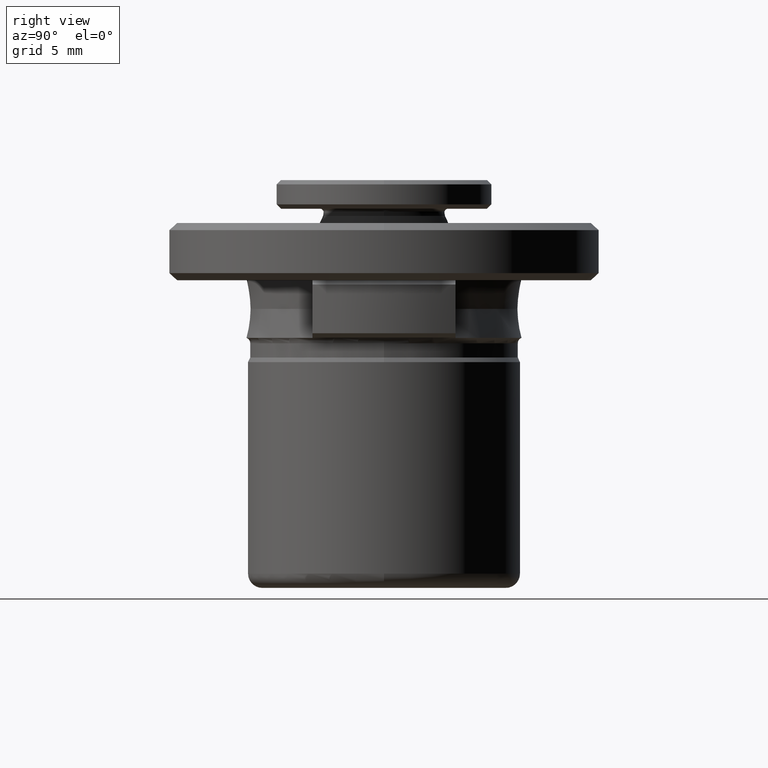
[diagram: clean part render]
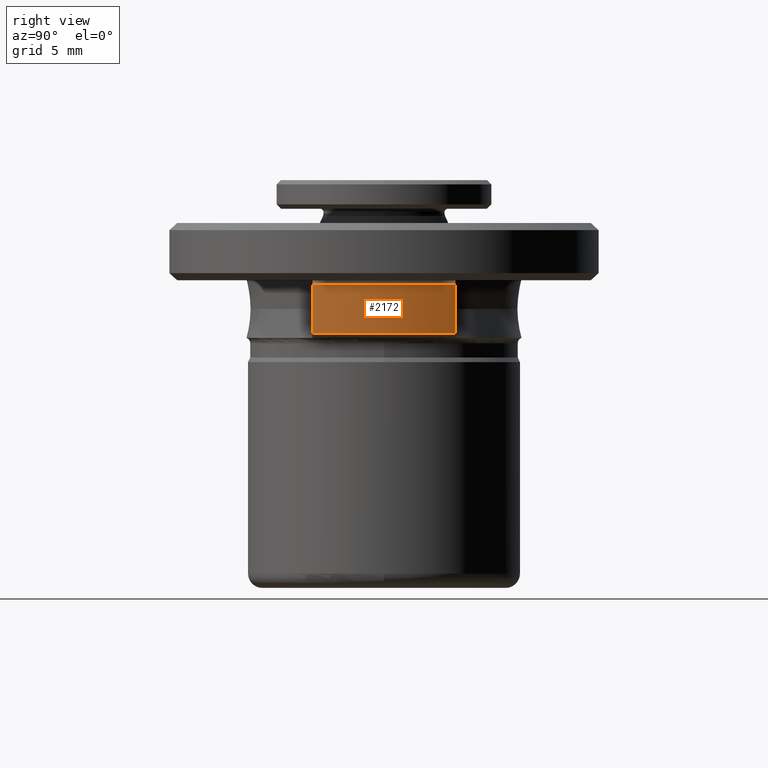
[diagram: same view with one face highlighted and labeled with its STEP entity id]
A machine part, right view. The second image highlights one B-rep face of the part: STEP entity #2172.
In plain terms, the highlighted cylindrical surface (partial cylindrical patch) has radius 12.4 mm, axis along (0, 0, 1).
Its self-contained STEP definition (entity closure, byte-faithful):
#26 = ORIENTED_EDGE ( 'NONE', *, *, #362, .F. ) ;
#104 = VERTEX_POINT ( 'NONE', #235 ) ;
#140 = AXIS2_PLACEMENT_3D ( 'NONE', #691, #2076, #1044 ) ;
#143 = EDGE_CURVE ( 'NONE', #1993, #647, #743, .T. ) ;
#166 = ORIENTED_EDGE ( 'NONE', *, *, #143, .T. ) ;
#201 = ORIENTED_EDGE ( 'NONE', *, *, #608, .F. ) ;
#218 = CARTESIAN_POINT ( 'NONE',  ( 11.34724636200171400, 5.000000000000000000, 5.049999999998430400 ) ) ;
#235 = CARTESIAN_POINT ( 'NONE',  ( 11.34724636202748200, -5.000000000000000000, 8.449999999976419900 ) ) ;
#316 = DIRECTION ( 'NONE',  ( 1.000000000000000000, 0.0000000000000000000, 1.398970545142586000E-016 ) ) ;
#362 = EDGE_CURVE ( 'NONE', #1893, #975, #920, .T. ) ;
#365 = DIRECTION ( 'NONE',  ( -0.0000000000000000000, -0.0000000000000000000, 1.000000000000000000 ) ) ;
#395 = DIRECTION ( 'NONE',  ( -0.0000000000000000000, -0.0000000000000000000, -1.000000000000000000 ) ) ;
#477 = CARTESIAN_POINT ( 'NONE',  ( 11.34724636200171400, 5.000000000000000000, 8.450000000001548300 ) ) ;
#504 = DIRECTION ( 'NONE',  ( 0.0000000000000000000, 0.0000000000000000000, -1.000000000000000000 ) ) ;
#533 = AXIS2_PLACEMENT_3D ( 'NONE', #1155, #2193, #837 ) ;
#571 = EDGE_CURVE ( 'NONE', #104, #975, #1971, .T. ) ;
#575 = CARTESIAN_POINT ( 'NONE',  ( 0.0000000000000000000, 0.0000000000000000000, 5.049999999999998900 ) ) ;
#598 = AXIS2_PLACEMENT_3D ( 'NONE', #575, #395, #1436 ) ;
#608 = EDGE_CURVE ( 'NONE', #104, #647, #645, .T. ) ;
#645 = CIRCLE ( 'NONE', #1688, 12.40000000000000200 ) ;
#647 = VERTEX_POINT ( 'NONE', #477 ) ;
#691 = CARTESIAN_POINT ( 'NONE',  ( 0.0000000000000000000, 0.0000000000000000000, 5.049999999999999800 ) ) ;
#726 = ORIENTED_EDGE ( 'NONE', *, *, #768, .F. ) ;
#743 = LINE ( 'NONE', #1928, #1154 ) ;
#768 = EDGE_CURVE ( 'NONE', #1993, #1893, #2161, .T. ) ;
#806 = EDGE_LOOP ( 'NONE', ( #726, #166, #201, #1057, #26 ) ) ;
#837 = DIRECTION ( 'NONE',  ( 1.000000000000000000, 0.0000000000000000000, 6.994852725712930200E-017 ) ) ;
#917 = CARTESIAN_POINT ( 'NONE',  ( 11.34724636193648300, -5.000000000000000000, 5.049999999940308000 ) ) ;
#920 = CIRCLE ( 'NONE', #533, 12.40000000000000200 ) ;
#975 = VERTEX_POINT ( 'NONE', #917 ) ;
#1044 = DIRECTION ( 'NONE',  ( 0.0000000000000000000, -1.000000000000000000, 0.0000000000000000000 ) ) ;
#1057 = ORIENTED_EDGE ( 'NONE', *, *, #571, .T. ) ;
#1129 = DIRECTION ( 'NONE',  ( 0.0000000000000000000, 0.0000000000000000000, 1.000000000000000000 ) ) ;
#1154 = VECTOR ( 'NONE', #365, 1000.000000000000000 ) ;
#1155 = CARTESIAN_POINT ( 'NONE',  ( 0.0000000000000000000, 0.0000000000000000000, 5.049999999999998900 ) ) ;
#1179 = CARTESIAN_POINT ( 'NONE',  ( 11.34724636200000000, -5.000000000000000000, 6.725040224999999900 ) ) ;
#1248 = CYLINDRICAL_SURFACE ( 'NONE', #140, 12.40000000000000200 ) ;
#1290 = CARTESIAN_POINT ( 'NONE',  ( 12.40000000000000200, 0.0000000000000000000, 5.049999999999998900 ) ) ;
#1436 = DIRECTION ( 'NONE',  ( 1.000000000000000000, 0.0000000000000000000, 6.994852725712930200E-017 ) ) ;
#1512 = VECTOR ( 'NONE', #504, 1000.000000000000000 ) ;
#1521 = CARTESIAN_POINT ( 'NONE',  ( 0.0000000000000000000, 0.0000000000000000000, 8.449999999999999300 ) ) ;
#1688 = AXIS2_PLACEMENT_3D ( 'NONE', #1521, #1129, #316 ) ;
#1710 = FACE_OUTER_BOUND ( 'NONE', #806, .T. ) ;
#1893 = VERTEX_POINT ( 'NONE', #1290 ) ;
#1928 = CARTESIAN_POINT ( 'NONE',  ( 11.34724636200000000, 5.000000000000000000, 6.725040224999999900 ) ) ;
#1971 = LINE ( 'NONE', #1179, #1512 ) ;
#1993 = VERTEX_POINT ( 'NONE', #218 ) ;
#2076 = DIRECTION ( 'NONE',  ( 0.0000000000000000000, 3.497426362856465100E-017, 1.000000000000000000 ) ) ;
#2161 = CIRCLE ( 'NONE', #598, 12.40000000000000200 ) ;
#2172 = ADVANCED_FACE ( 'NONE', ( #1710 ), #1248, .T. ) ;
#2193 = DIRECTION ( 'NONE',  ( -0.0000000000000000000, -0.0000000000000000000, -1.000000000000000000 ) ) ;